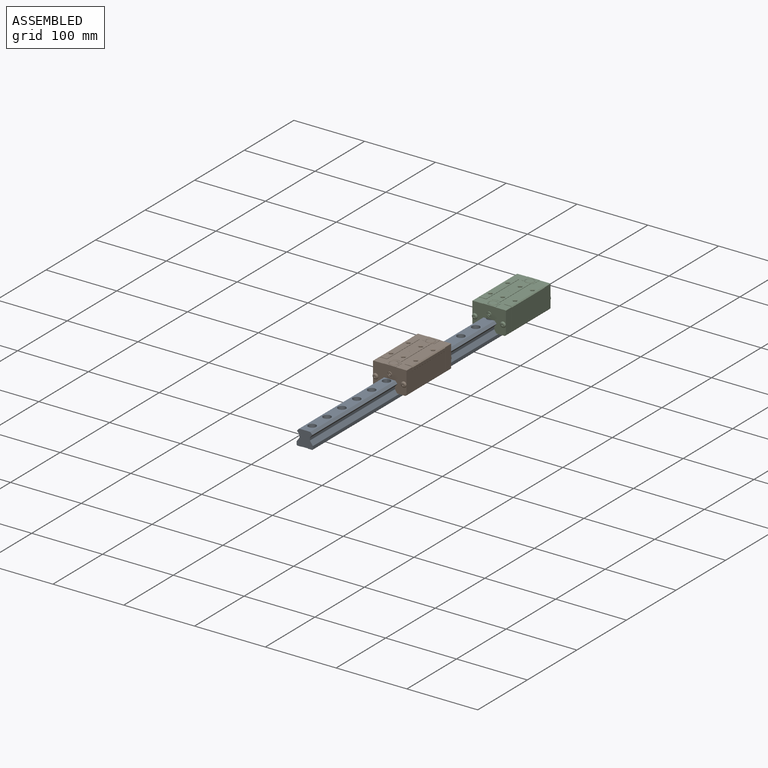
[diagram: assembled view]
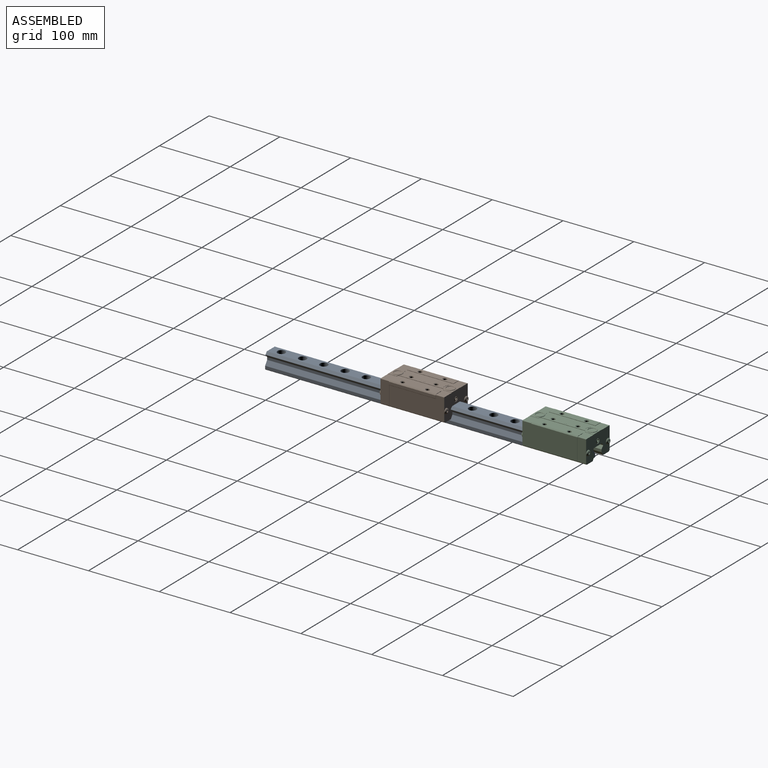
[diagram: assembled view, second angle]
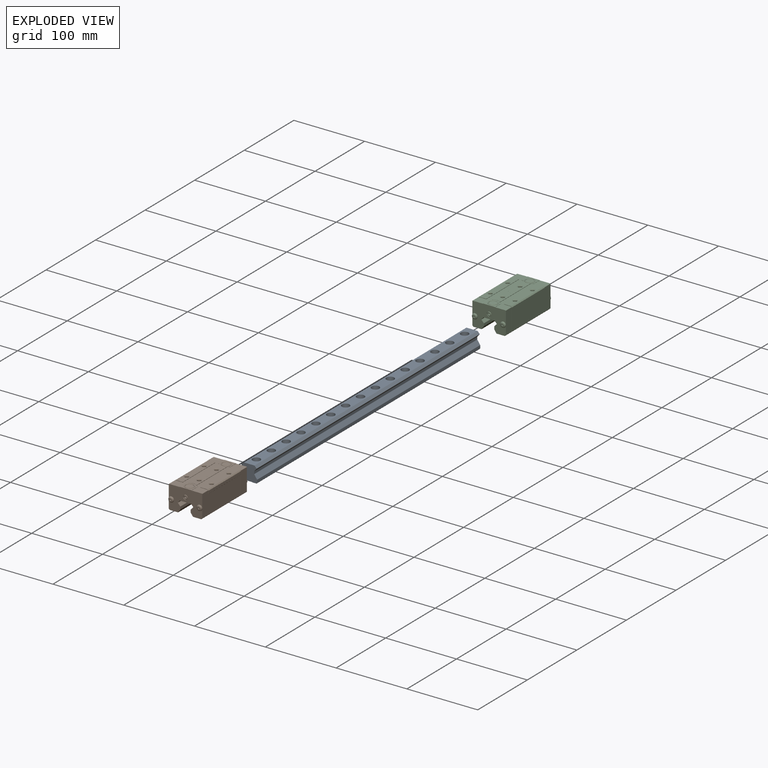
[diagram: exploded view]
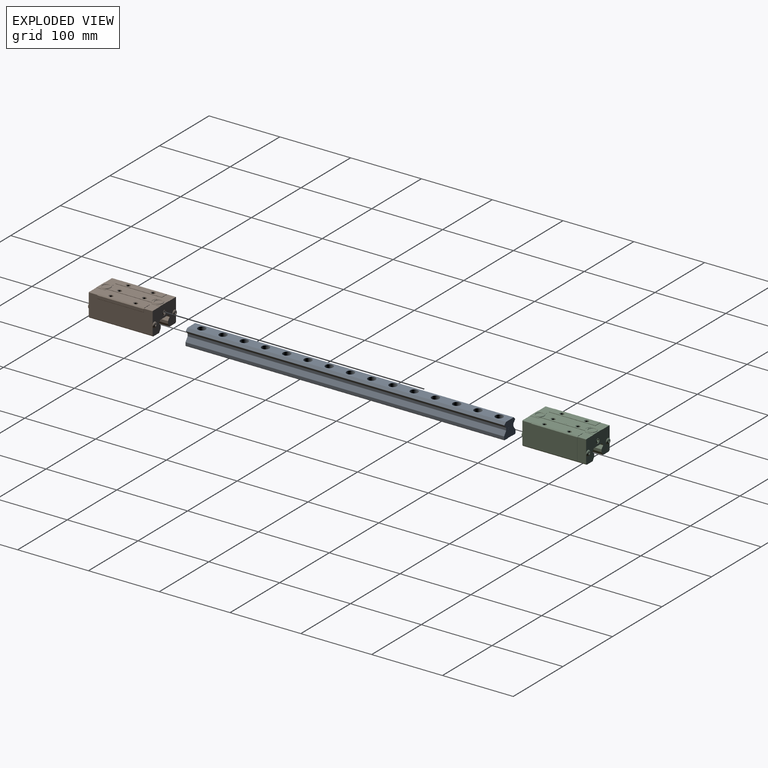
[diagram: exploded view, second angle]
ASSEMBLY  parts=3 mates=2
PART A: 85 faces, bbox 23x450x22.3 mm
  f0: plane 450x0.3mm, normal (-0.71,0,-0.71), area 190.9mm2, adj f43,f44,f70,f76
  f1: plane 450x0.3mm, normal (0.71,0,-0.71), area 190.9mm2, adj f43,f53,f70,f76
  f2: plane 450x0.8mm, normal (0.71,0,-0.71), area 509.1mm2, adj f44,f45,f70,f76
  f3: cylinder r=0.65mm len=450mm, axis (0,1,0), area 178.7mm2, adj f45,f46,f70,f76
  f4: cylinder r=0.65mm len=450mm, axis (0,1,0), area 178.7mm2, adj f46,f47,f70,f76
  f5: cylinder r=0.65mm len=450mm, axis (0,1,0), area 214.4mm2, adj f47,f48,f70,f76
  f6: cylinder r=0.65mm len=450mm, axis (0,1,0), area 214.4mm2, adj f49,f50,f70,f76
  f7: cylinder r=0.65mm len=450mm, axis (0,1,0), area 178.7mm2, adj f50,f51,f70,f76
  f8: cylinder r=0.65mm len=450mm, axis (0,1,0), area 178.7mm2, adj f51,f52,f70,f76
  f9: plane 450x0.8mm, normal (-0.71,0,-0.71), area 509.1mm2, adj f52,f53,f70,f76
  f10: cylinder r=0.4mm len=450mm, axis (0,1,0), area 263.9mm2, adj f49,f70,f71,f76
  f11: plane 450x3.13mm, normal (0.74,0,0.67), area 1895.2mm2, adj f12,f54,f70,f76
  f12: plane 450x15.78mm, normal (0,0,1), area 5677mm2, adj f11,f55,f56,f57,f58,f59,f60,f61
  f13: cylinder r=3.4mm len=11.5mm, axis (0,0,1), area 245.7mm2, adj f28,f43
  f14: cylinder r=3.4mm len=11.5mm, axis (0,0,1), area 245.7mm2, adj f29,f43
  f15: cylinder r=3.4mm len=11.5mm, axis (0,0,1), area 245.7mm2, adj f30,f43
  f16: cylinder r=3.4mm len=11.5mm, axis (0,0,1), area 245.7mm2, adj f31,f43
  f17: cylinder r=3.4mm len=11.5mm, axis (0,0,1), area 245.7mm2, adj f32,f43
  f18: cylinder r=3.4mm len=11.5mm, axis (0,0,1), area 245.7mm2, adj f33,f43
  f19: cylinder r=3.4mm len=11.5mm, axis (0,0,1), area 245.7mm2, adj f34,f43
  f20: cylinder r=3.4mm len=11.5mm, axis (0,0,1), area 245.7mm2, adj f35,f43
  f21: cylinder r=3.4mm len=11.5mm, axis (0,0,1), area 245.7mm2, adj f36,f43
  f22: cylinder r=3.4mm len=11.5mm, axis (0,0,1), area 245.7mm2, adj f37,f43
  f23: cylinder r=3.4mm len=11.5mm, axis (0,0,1), area 245.7mm2, adj f38,f43
  f24: cylinder r=3.4mm len=11.5mm, axis (0,0,1), area 245.7mm2, adj f39,f43
  f25: cylinder r=3.4mm len=11.5mm, axis (0,0,1), area 245.7mm2, adj f40,f43
  f26: cylinder r=3.4mm len=11.5mm, axis (0,0,1), area 245.7mm2, adj f41,f43
  f27: cylinder r=3.4mm len=11.5mm, axis (0,0,1), area 245.7mm2, adj f42,f43
  f28: plane 11x11mm, normal (0,0,1), area 58.7mm2, adj f13,f55
  f29: plane 11x11mm, normal (0,0,1), area 58.7mm2, adj f14,f56
  f30: plane 11x11mm, normal (0,0,1), area 58.7mm2, adj f15,f57
  f31: plane 11x11mm, normal (0,0,1), area 58.7mm2, adj f16,f58
  f32: plane 11x11mm, normal (0,0,1), area 58.7mm2, adj f17,f59
  f33: plane 11x11mm, normal (0,0,1), area 58.7mm2, adj f18,f60
  f34: plane 11x11mm, normal (0,0,1), area 58.7mm2, adj f19,f61
  f35: plane 11x11mm, normal (0,0,1), area 58.7mm2, adj f20,f62
  f36: plane 11x11mm, normal (0,0,1), area 58.7mm2, adj f21,f63
  f37: plane 11x11mm, normal (0,0,1), area 58.7mm2, adj f22,f64
  f38: plane 11x11mm, normal (0,0,1), area 58.7mm2, adj f23,f65
  f39: plane 11x11mm, normal (0,0,1), area 58.7mm2, adj f24,f66
  f40: plane 11x11mm, normal (0,0,1), area 58.7mm2, adj f25,f67
  f41: plane 11x11mm, normal (0,0,1), area 58.7mm2, adj f26,f68
  f42: plane 11x11mm, normal (0,0,1), area 58.7mm2, adj f27,f69
  f43: plane 450x8.4mm, normal (0,0,-1), area 3235.2mm2, adj f0,f1,f13,f14,f15,f16,f17,f18
  f44: plane 450x6.19mm, normal (0,0,-1), area 2785.5mm2, adj f0,f2,f70,f76
  f45: plane 450x4.14mm, normal (1,0,0), area 1862.4mm2, adj f2,f3,f70,f76
  f46: plane 450x5.66mm, normal (0.82,0,0.57), area 3110.7mm2, adj f3,f4,f70,f76
  f47: plane 450x3.22mm, normal (1,0,0), area 1449.4mm2, adj f4,f5,f70,f76
  f48: plane 450x3.61mm, normal (0.74,0,-0.67), area 2187.2mm2, adj f5,f54,f70,f76
  f49: plane 450x3.61mm, normal (-0.74,0,-0.67), area 2187.5mm2, adj f6,f10,f70,f76
  f50: plane 450x3.22mm, normal (-1,0,0), area 1449.4mm2, adj f6,f7,f70,f76
  f51: plane 450x5.66mm, normal (-0.82,0,0.57), area 3110.7mm2, adj f7,f8,f70,f76
  f52: plane 450x4.14mm, normal (-1,0,0), area 1862.4mm2, adj f8,f9,f70,f76
  f53: plane 450x6.19mm, normal (0,0,-1), area 2785.5mm2, adj f1,f9,f70,f76
  f54: cylinder r=0.4mm len=450mm, axis (0,1,0), area 263.9mm2, adj f11,f48,f70,f76
  f55: cylinder r=5.5mm len=11mm, axis (0,0,1), area 362.2mm2, adj f12,f28
  f56: cylinder r=5.5mm len=11mm, axis (0,0,1), area 362.2mm2, adj f12,f29
  f57: cylinder r=5.5mm len=11mm, axis (0,0,1), area 362.2mm2, adj f12,f30
  f58: cylinder r=5.5mm len=11mm, axis (0,0,1), area 362.2mm2, adj f12,f31
  f59: cylinder r=5.5mm len=11mm, axis (0,0,1), area 362.2mm2, adj f12,f32
  f60: cylinder r=5.5mm len=11mm, axis (0,0,1), area 362.2mm2, adj f12,f33
  f61: cylinder r=5.5mm len=11mm, axis (0,0,1), area 362.2mm2, adj f12,f34
  f62: cylinder r=5.5mm len=11mm, axis (0,0,1), area 362.2mm2, adj f12,f35
  f63: cylinder r=5.5mm len=11mm, axis (0,0,1), area 362.2mm2, adj f12,f36
  f64: cylinder r=5.5mm len=11mm, axis (0,0,1), area 362.2mm2, adj f12,f37
  f65: cylinder r=5.5mm len=11mm, axis (0,0,1), area 362.2mm2, adj f12,f38
  f66: cylinder r=5.5mm len=11mm, axis (0,0,1), area 362.2mm2, adj f12,f39
  f67: cylinder r=5.5mm len=11mm, axis (0,0,1), area 362.2mm2, adj f12,f40
  f68: cylinder r=5.5mm len=11mm, axis (0,0,1), area 362.2mm2, adj f12,f41
  f69: cylinder r=5.5mm len=11mm, axis (0,0,1), area 362.2mm2, adj f12,f42
  f70: plane 22.98x22.28mm, normal (0,1,0), area 419.3mm2, adj f0,f1,f2,f3,f4,f5,f6,f7
  f71: plane 450x3.13mm, normal (-0.74,0,0.67), area 1894.9mm2, adj f10,f12,f70,f76
  f72: plane 3.84x3.84mm, normal (-0.71,0,0.71), area 0.1mm2, adj f73,f75,f76,f84
  f73: plane 3.84x3.84mm, normal (0.71,0,0.71), area 0.1mm2, adj f72,f74,f76,f84
  f74: plane 3.84x3.84mm, normal (0.71,0,-0.71), area 0.1mm2, adj f73,f75,f76,f84
  f75: plane 3.84x3.84mm, normal (-0.71,0,-0.71), area 0.1mm2, adj f72,f74,f76,f84
  f76: plane 22.98x22.28mm, normal (0,-1,0), area 389.8mm2, adj f0,f1,f2,f3,f4,f5,f6,f7
  f77: plane 0.5x0.32mm, normal (0,-1,0), area 0.1mm2, adj f79
  f78: plane 0.5x0.33mm, normal (0,-1,0), area 0.1mm2, adj f83
  f79: plane 1.66x1.53mm, normal (0,-1,0), area 1.5mm2, adj f77,f84
  f80: plane 1.52x1.06mm, normal (0,-1,0), area 1mm2, adj f84
  f81: plane 1.67x1.52mm, normal (0,-1,0), area 1.8mm2, adj f84
  f82: plane 1.51x1.07mm, normal (0,-1,0), area 1mm2, adj f84
  f83: plane 1.65x1.52mm, normal (0,-1,0), area 1.5mm2, adj f78,f84
  f84: plane 7.69x7.69mm, normal (0,-1,0), area 22.6mm2, adj f72,f73,f74,f75,f79,f80,f81,f82
PART B: 233 faces, bbox 47.9x94.2x34.1 mm
  f0: cylinder r=7mm len=1.54mm, axis (0,0,-1), area 0.5mm2, adj f2,f66,f67,f102
  f1: plane 0.6x0.6mm, normal (0,-1,0), area 0.1mm2, adj f50,f67,f68,f117
  f2: plane 2.08x0.3mm, normal (0,-1,0), area 0.6mm2, adj f0,f48,f66,f67
  f3: plane 2.08x0.3mm, normal (0,-1,0), area 0.6mm2, adj f47,f64,f65,f66
  f4: plane 26.65x0.15mm, normal (0,-1,0), area 4mm2, adj f62,f63,f97,f108
  f5: plane 2.39x1.5mm, normal (0.87,0,-0.5), area 4.1mm2, adj f6,f7,f9,f12
  f6: plane 2.39x1.5mm, normal (0.87,0,0.5), area 4.1mm2, adj f5,f8,f9,f12
  f7: plane 2.39x1.73mm, normal (0,0,-1), area 4.1mm2, adj f5,f9,f10,f12
  f8: plane 2.39x1.73mm, normal (0,0,1), area 4.1mm2, adj f6,f9,f11,f12
  f9: plane 3.46x3mm, normal (0,1,0), area 7.8mm2, adj f5,f6,f7,f8,f10,f11
  f10: plane 2.39x1.5mm, normal (-0.87,0,-0.5), area 4.1mm2, adj f7,f9,f11,f12
  f11: plane 2.39x1.5mm, normal (-0.87,0,0.5), area 4.1mm2, adj f8,f9,f10,f12
  f12: plane 4.77x4.77mm, normal (0,1,0), area 10.1mm2, adj f5,f6,f7,f8,f10,f11,f15
  f13: plane 2.89x2.5mm, normal (0,1,0), area 5.4mm2, adj f16,f17,f18,f19,f20,f21
  f14: plane 2.89x2.5mm, normal (0,1,0), area 5.4mm2, adj f22,f23,f24,f25,f26,f27
  f15: cone r=3mm half-angle=45deg, axis (0,-1,0), area 14.7mm2, adj f12,f28
  f16: plane 1.44x1.3mm, normal (-1,0,0), area 1.9mm2, adj f13,f17,f21,f29
  f17: plane 1.3x1.25mm, normal (-0.5,0,-0.87), area 1.9mm2, adj f13,f16,f18,f29
  f18: plane 1.3x1.25mm, normal (0.5,0,-0.87), area 1.9mm2, adj f13,f17,f19,f29
  f19: plane 1.44x1.3mm, normal (1,0,0), area 1.9mm2, adj f13,f18,f20,f29
  f20: plane 1.3x1.25mm, normal (0.5,0,0.87), area 1.9mm2, adj f13,f19,f21,f29
  f21: plane 1.3x1.25mm, normal (-0.5,0,0.87), area 1.9mm2, adj f13,f16,f20,f29
  f22: plane 1.44x1.3mm, normal (-1,0,0), area 1.9mm2, adj f14,f23,f27,f30
  f23: plane 1.3x1.25mm, normal (-0.5,0,-0.87), area 1.9mm2, adj f14,f22,f24,f30
  f24: plane 1.3x1.25mm, normal (0.5,0,-0.87), area 1.9mm2, adj f14,f23,f25,f30
  f25: plane 1.44x1.3mm, normal (1,0,0), area 1.9mm2, adj f14,f24,f26,f30
  f26: plane 1.3x1.25mm, normal (0.5,0,0.87), area 1.9mm2, adj f14,f25,f27,f30
  f27: plane 1.3x1.25mm, normal (-0.5,0,0.87), area 1.9mm2, adj f14,f22,f26,f30
  f28: cylinder r=3mm len=6mm, axis (0,-1,0), area 3.5mm2, adj f15,f31
  f29: plane 3.69x3.69mm, normal (0,1,0), area 5mm2, adj f16,f17,f18,f19,f20,f21,f35
  f30: plane 3.69x3.69mm, normal (0,1,0), area 5mm2, adj f22,f23,f24,f25,f26,f27,f36
  f31: plane 6.6x6.6mm, normal (0,1,0), area 5.9mm2, adj f28,f37
  f32: cylinder r=3.8mm len=2.11mm, axis (0,-1,0), area 0.5mm2, adj f35,f44,f63
  f33: plane 10x10mm, normal (0,0,1), area 78.5mm2, adj f46
  f34: cylinder r=3.8mm len=2.11mm, axis (0,-1,0), area 0.5mm2, adj f36,f49,f68
  f35: revolved ~7.6x7.6mm, area 60.2mm2, adj f29,f32,f51
  f36: revolved ~7.6x7.6mm, area 60.2mm2, adj f30,f34,f51
  f37: cylinder r=3.3mm len=6.6mm, axis (0,1,0), area 16.6mm2, adj f31,f51
  f38: cylinder r=0.65mm len=90.14mm, axis (0,1,0), area 35.8mm2, adj f51,f52,f53,f133
  f39: cylinder r=0.65mm len=90.14mm, axis (0,1,0), area 42.9mm2, adj f51,f53,f54,f133
  f40: cylinder r=0.4mm len=77.87mm, axis (0,1,0), area 45.7mm2, adj f51,f54,f55,f141
  f41: cylinder r=0.4mm len=77.87mm, axis (0,1,0), area 45.7mm2, adj f51,f57,f58,f142
  f42: cylinder r=0.65mm len=90.14mm, axis (0,1,0), area 42.9mm2, adj f51,f58,f59,f133
  f43: cylinder r=0.65mm len=90.14mm, axis (0,1,0), area 35.8mm2, adj f51,f59,f60,f133
  f44: plane 2.11x0.15mm, normal (0,-1,0), area 0.2mm2, adj f32,f63
  f45: cylinder r=0.5mm len=12.27mm, axis (0,1,0), area 9.6mm2, adj f51,f63,f64,f71,f181,f183
  f46: revolved ~13x13mm, area 85.1mm2, adj f33,f66
  f47: plane 12.27x0.3mm, normal (1,0,0), area 3.7mm2, adj f3,f51,f64,f66
  f48: plane 12.27x0.3mm, normal (-1,0,0), area 3.7mm2, adj f2,f51,f66,f67
  f49: plane 2.11x0.15mm, normal (0,-1,0), area 0.2mm2, adj f34,f68
  f50: cylinder r=0.5mm len=12.27mm, axis (0,1,0), area 9.6mm2, adj f1,f51,f67,f68
  f51: plane 47.3x33.3mm, normal (0,1,0), area 1164.9mm2, adj f35,f36,f37,f38,f39,f40,f41,f42
  f52: plane 90.14x4.47mm, normal (0.82,0,-0.57), area 492.3mm2, adj f38,f51,f70,f133
  f53: plane 90.14x3.22mm, normal (1,0,0), area 290.3mm2, adj f38,f39,f51,f133
  f54: plane 90.14x3.61mm, normal (0.74,0,0.67), area 438.2mm2, adj f39,f40,f51,f133,f141
  f55: plane 77.87x3.13mm, normal (0.74,0,-0.67), area 327.9mm2, adj f40,f51,f56,f131
  f56: plane 90.14x15.78mm, normal (0,0,-1), area 1422.7mm2, adj f51,f55,f57,f131,f132,f133
  f57: plane 77.87x3.13mm, normal (-0.74,0,-0.67), area 328mm2, adj f41,f51,f56,f132
  f58: plane 90.14x3.61mm, normal (-0.74,0,0.67), area 438.1mm2, adj f41,f42,f51,f133,f142
  f59: plane 90.14x3.22mm, normal (-1,0,0), area 290.3mm2, adj f42,f43,f51,f133
  f60: plane 90.14x4.47mm, normal (-0.82,0,-0.57), area 492.3mm2, adj f43,f51,f61,f133
  f61: plane 90.14x11.71mm, normal (0,0,-1), area 1055.5mm2, adj f51,f60,f62,f107,f125,f133
  f62: plane 12.27x1.4mm, normal (0.71,0,-0.71), area 24.3mm2, adj f4,f51,f61,f63,f184
  f63: plane 31.1x12.27mm, normal (1,0,0), area 381.1mm2, adj f4,f32,f44,f45,f51,f62,f183
  f64: plane 90.14x17.66mm, normal (0,0,1), area 817.8mm2, adj f3,f45,f47,f51,f65,f75,f100,f101
  f65: cylinder r=7mm len=1.54mm, axis (0,0,-1), area 0.5mm2, adj f3,f64,f66,f100
  f66: plane 17x16.47mm, normal (0,0,1), area 114.7mm2, adj f0,f2,f3,f46,f47,f48,f51,f65
  f67: plane 90.14x17.66mm, normal (0,0,1), area 817.8mm2, adj f0,f1,f2,f48,f50,f51,f102,f105
  f68: plane 31.1x12.27mm, normal (-1,0,0), area 381.1mm2, adj f1,f34,f49,f50,f51,f69,f182
  f69: plane 12.27x1.4mm, normal (-0.71,0,-0.71), area 24.3mm2, adj f51,f68,f70,f182
  f70: plane 90.14x11.71mm, normal (0,0,-1), area 1055.5mm2, adj f51,f52,f69,f115,f130,f133
  f71: plane 0.37x0.37mm, normal (0,-1,0), area 0mm2, adj f45,f110
  f72: plane 1.25x1.25mm, normal (0,-1,0), area 0mm2, adj f107,f108,f125
  f73: plane 4.71x0.36mm, normal (0,-1,0), area 1.5mm2, adj f97,f109,f110,f126,f134
  f74: plane 32.4x1.55mm, normal (0,-1,0), area 4.6mm2, adj f115,f117,f118,f129,f130
  f75: plane 10.76x0.51mm, normal (0,-1,0), area 5.3mm2, adj f64,f101,f110,f111,f134
  f76: plane 62.51x10.98mm, normal (0,0,1), area 534.3mm2, adj f93,f94,f100,f102,f106,f112,f119,f120
  f77: cone r=2.5mm half-angle=60deg, axis (0,0,1), area 22.7mm2, adj f81
  f78: cone r=2.5mm half-angle=60deg, axis (0,0,1), area 22.7mm2, adj f82
  f79: cone r=2.5mm half-angle=60deg, axis (0,0,1), area 22.7mm2, adj f85
  f80: cone r=2.5mm half-angle=60deg, axis (0,0,1), area 22.7mm2, adj f86
  f81: plane 5x5mm, normal (0,0,-1), area 0.1mm2, adj f77,f87
  f82: plane 5x5mm, normal (0,0,-1), area 0.1mm2, adj f78,f88
  f83: cone r=2.5mm half-angle=60deg, axis (0,0,1), area 22.7mm2, adj f89
  f84: cone r=2.5mm half-angle=60deg, axis (0,0,1), area 22.7mm2, adj f90
  f85: plane 5x5mm, normal (0,0,-1), area 0.1mm2, adj f79,f91
  f86: plane 5x5mm, normal (0,0,-1), area 0.1mm2, adj f80,f92
  f87: cylinder r=2.49mm len=8.67mm, axis (0,0,1), area 135.9mm2, adj f81,f93
  f88: cylinder r=2.49mm len=8.67mm, axis (0,0,1), area 135.9mm2, adj f82,f94
  f89: plane 5x5mm, normal (0,0,-1), area 0.1mm2, adj f83,f95
  f90: plane 5x5mm, normal (0,0,-1), area 0.1mm2, adj f84,f96
  f91: cylinder r=2.49mm len=8.67mm, axis (0,0,1), area 135.9mm2, adj f85,f98
  f92: cylinder r=2.49mm len=8.67mm, axis (0,0,1), area 135.9mm2, adj f86,f99
  f93: cone r=2.49mm half-angle=45deg, axis (0,0,1), area 21.5mm2, adj f76,f87
  f94: cone r=2.49mm half-angle=45deg, axis (0,0,1), area 21.5mm2, adj f76,f88
  f95: cylinder r=2.49mm len=8.67mm, axis (0,0,1), area 135.9mm2, adj f89,f103
  f96: cylinder r=2.49mm len=8.67mm, axis (0,0,1), area 135.9mm2, adj f90,f104
  f97: plane 65.6x0.5mm, normal (0.71,0,-0.71), area 46.4mm2, adj f4,f73,f108,f109,f179,f183
  f98: cone r=2.49mm half-angle=45deg, axis (0,0,1), area 21.5mm2, adj f91,f111
  f99: cone r=2.49mm half-angle=45deg, axis (0,0,1), area 21.5mm2, adj f92,f111
  f100: plane 62.51x0.5mm, normal (1,0,0), area 31.3mm2, adj f64,f65,f76,f106,f112,f180
  f101: plane 65.6x0.5mm, normal (-1,0,0), area 32.8mm2, adj f64,f75,f111,f181
  f102: plane 62.51x0.5mm, normal (-1,0,0), area 31.3mm2, adj f0,f67,f76,f106,f112,f128
  f103: cone r=2.49mm half-angle=45deg, axis (0,0,1), area 21.5mm2, adj f95,f113
  f104: cone r=2.49mm half-angle=45deg, axis (0,0,1), area 21.5mm2, adj f96,f113
  f105: plane 65.6x0.5mm, normal (1,0,0), area 32.8mm2, adj f67,f113,f114,f116
  f106: cylinder r=7mm len=10.98mm, axis (0,0,1), area 2.5mm2, adj f66,f76,f100,f102
  f107: plane 65.6x1.25mm, normal (0.7,0,-0.71), area 115.3mm2, adj f61,f72,f108,f184
  f108: plane 65.6x26.51mm, normal (1,0,0), area 1739.3mm2, adj f4,f72,f97,f107,f179,f184
  f109: plane 65.6x4mm, normal (1,0,0), area 262.4mm2, adj f73,f97,f110,f183
  f110: plane 65.6x1.25mm, normal (0.71,0,0.71), area 116mm2, adj f71,f73,f75,f109,f111,f178,f181,f183
  f111: plane 65.6x10.25mm, normal (0,0,1), area 602.9mm2, adj f75,f98,f99,f101,f110,f181
  f112: cylinder r=7mm len=10.98mm, axis (0,0,1), area 2.5mm2, adj f76,f100,f102,f127
  f113: plane 65.6x10.05mm, normal (0,0,1), area 589.8mm2, adj f103,f104,f105,f114,f116,f117
  f114: plane 10.55x0.5mm, normal (0,1,0), area 5.2mm2, adj f67,f105,f113,f117
  f115: plane 65.6x1.55mm, normal (-0.7,0,-0.71), area 142.9mm2, adj f70,f74,f118,f182
  f116: plane 10.55x0.5mm, normal (0,-1,0), area 5.2mm2, adj f67,f105,f113,f117
  f117: plane 65.6x1.25mm, normal (-0.71,0,0.71), area 116mm2, adj f1,f74,f113,f114,f116,f118,f124,f182
  f118: plane 65.6x30.72mm, normal (-1,0,0), area 2015.2mm2, adj f74,f115,f117,f182
  f119: plane 4.58x4.58mm, normal (0.71,0.71,0), area 0.2mm2, adj f76,f120,f122,f123
  f120: plane 4.58x4.58mm, normal (-0.71,0.71,0), area 0.2mm2, adj f76,f119,f121,f123
  f121: plane 4.58x4.58mm, normal (-0.71,-0.71,0), area 0.2mm2, adj f76,f120,f122,f123
  f122: plane 4.58x4.58mm, normal (0.71,-0.71,0), area 0.2mm2, adj f76,f119,f121,f123
  f123: plane 9.16x9.16mm, normal (0,0,1), area 42mm2, adj f119,f120,f121,f122
  f124: plane 0.6x0.6mm, normal (0,1,0), area 0.1mm2, adj f67,f117,f129,f139
  f125: plane 12.27x1.4mm, normal (0.71,0,-0.71), area 24.3mm2, adj f61,f72,f126,f133,f179
  f126: plane 31.1x12.27mm, normal (1,0,0), area 381.1mm2, adj f73,f125,f133,f134,f135,f146,f179
  f127: plane 17x16.47mm, normal (0,0,1), area 114.7mm2, adj f112,f128,f133,f136,f137,f138,f176,f177
  f128: cylinder r=7mm len=1.54mm, axis (0,0,-1), area 0.5mm2, adj f67,f102,f127,f176
  f129: plane 31.1x12.27mm, normal (-1,0,0), area 381.1mm2, adj f74,f124,f130,f133,f139,f140,f148
  f130: plane 12.27x1.4mm, normal (-0.71,0,-0.71), area 24.3mm2, adj f70,f74,f129,f133
  f131: plane 12.27x3.13mm, normal (0.74,0,-0.67), area 51.7mm2, adj f55,f56,f133,f141
  f132: plane 12.27x3.13mm, normal (-0.74,0,-0.67), area 51.7mm2, adj f56,f57,f133,f142
  f133: plane 47.3x33.3mm, normal (0,-1,0), area 1164.9mm2, adj f38,f39,f42,f43,f52,f53,f54,f56
  f134: cylinder r=0.5mm len=12.27mm, axis (0,-1,0), area 9.6mm2, adj f64,f73,f75,f126,f133,f178
  f135: plane 2.11x0.15mm, normal (0,1,0), area 0.2mm2, adj f126,f146
  f136: plane 12.27x0.3mm, normal (1,0,0), area 3.7mm2, adj f64,f127,f133,f177
  f137: plane 12.27x0.3mm, normal (-1,0,0), area 3.7mm2, adj f67,f127,f133,f176
  f138: revolved ~13x13mm, area 85.1mm2, adj f127,f147
  f139: cylinder r=0.5mm len=12.27mm, axis (0,-1,0), area 9.6mm2, adj f67,f124,f129,f133
  f140: plane 2.11x0.15mm, normal (0,1,0), area 0.2mm2, adj f129,f148
  f141: cylinder r=0.4mm len=12.27mm, axis (0,-1,0), area 7.2mm2, adj f40,f54,f131,f133
  f142: cylinder r=0.4mm len=12.27mm, axis (0,-1,0), area 7.2mm2, adj f41,f58,f132,f133
  f143: cylinder r=3.3mm len=6.6mm, axis (0,-1,0), area 16.6mm2, adj f133,f149
  f144: revolved ~7.6x7.6mm, area 60.2mm2, adj f133,f146,f150
  f145: revolved ~7.6x7.6mm, area 60.2mm2, adj f133,f148,f151
  f146: cylinder r=3.8mm len=2.11mm, axis (0,1,0), area 0.5mm2, adj f126,f135,f144
  f147: plane 10x10mm, normal (0,0,1), area 78.5mm2, adj f138
  f148: cylinder r=3.8mm len=2.11mm, axis (0,1,0), area 0.5mm2, adj f129,f140,f145
  f149: plane 6.6x6.6mm, normal (0,-1,0), area 5.9mm2, adj f143,f152
  f150: plane 3.69x3.69mm, normal (0,-1,0), area 5mm2, adj f144,f153,f154,f155,f156,f157,f158
  f151: plane 3.69x3.69mm, normal (0,-1,0), area 5mm2, adj f145,f159,f160,f161,f162,f163,f164
  f152: cylinder r=3mm len=6mm, axis (0,1,0), area 3.5mm2, adj f149,f165
  f153: plane 1.3x1.25mm, normal (0.5,0,0.87), area 1.9mm2, adj f150,f154,f158,f166
  f154: plane 1.3x1.25mm, normal (-0.5,0,0.87), area 1.9mm2, adj f150,f153,f155,f166
  f155: plane 1.44x1.3mm, normal (-1,0,0), area 1.9mm2, adj f150,f154,f156,f166
  f156: plane 1.3x1.25mm, normal (-0.5,0,-0.87), area 1.9mm2, adj f150,f155,f157,f166
  f157: plane 1.3x1.25mm, normal (0.5,0,-0.87), area 1.9mm2, adj f150,f156,f158,f166
  f158: plane 1.44x1.3mm, normal (1,0,0), area 1.9mm2, adj f150,f153,f157,f166
  f159: plane 1.3x1.25mm, normal (0.5,0,0.87), area 1.9mm2, adj f151,f160,f164,f167
  f160: plane 1.3x1.25mm, normal (-0.5,0,0.87), area 1.9mm2, adj f151,f159,f161,f167
  f161: plane 1.44x1.3mm, normal (-1,0,0), area 1.9mm2, adj f151,f160,f162,f167
  f162: plane 1.3x1.25mm, normal (-0.5,0,-0.87), area 1.9mm2, adj f151,f161,f163,f167
  f163: plane 1.3x1.25mm, normal (0.5,0,-0.87), area 1.9mm2, adj f151,f162,f164,f167
  f164: plane 1.44x1.3mm, normal (1,0,0), area 1.9mm2, adj f151,f159,f163,f167
  f165: cone r=3mm half-angle=45deg, axis (0,1,0), area 14.7mm2, adj f152,f168
  f166: plane 2.89x2.5mm, normal (0,-1,0), area 5.4mm2, adj f153,f154,f155,f156,f157,f158
  f167: plane 2.89x2.5mm, normal (0,-1,0), area 5.4mm2, adj f159,f160,f161,f162,f163,f164
  f168: plane 4.77x4.77mm, normal (0,-1,0), area 10.1mm2, adj f165,f169,f170,f172,f173,f174,f175
  f169: plane 2.39x1.5mm, normal (0.87,0,0.5), area 4.1mm2, adj f168,f170,f171,f172
  f170: plane 2.39x1.5mm, normal (0.87,0,-0.5), area 4.1mm2, adj f168,f169,f171,f173
  f171: plane 3.46x3mm, normal (0,-1,0), area 7.8mm2, adj f169,f170,f172,f173,f174,f175
  f172: plane 2.39x1.73mm, normal (0,0,1), area 4.1mm2, adj f168,f169,f171,f174
  f173: plane 2.39x1.73mm, normal (0,0,-1), area 4.1mm2, adj f168,f170,f171,f175
  f174: plane 2.39x1.5mm, normal (-0.87,0,0.5), area 4.1mm2, adj f168,f171,f172,f175
  f175: plane 2.39x1.5mm, normal (-0.87,0,-0.5), area 4.1mm2, adj f168,f171,f173,f174
  f176: plane 2.08x0.3mm, normal (0,1,0), area 0.6mm2, adj f67,f127,f128,f137
  f177: plane 2.08x0.3mm, normal (0,1,0), area 0.6mm2, adj f64,f127,f136,f180
  f178: plane 0.37x0.37mm, normal (0,1,0), area 0mm2, adj f110,f134
  f179: plane 26.65x0.15mm, normal (0,1,0), area 4mm2, adj f97,f108,f125,f126
  f180: cylinder r=7mm len=1.54mm, axis (0,0,-1), area 0.5mm2, adj f64,f100,f127,f177
  f181: plane 10.76x0.51mm, normal (0,1,0), area 5.3mm2, adj f45,f64,f101,f110,f111
  f182: plane 32.4x1.55mm, normal (0,1,0), area 4.6mm2, adj f68,f69,f115,f117,f118
  f183: plane 4.71x0.36mm, normal (0,1,0), area 1.5mm2, adj f45,f63,f97,f109,f110
  f184: plane 1.25x1.25mm, normal (0,1,0), area 0mm2, adj f62,f107,f108
  f185: plane 4.5x4.5mm, normal (0,-1,0), area 0.7mm2, adj f186,f187
  f186: cylinder r=2.25mm len=12.05mm, axis (0,1,0), area 170.4mm2, adj f185,f190
  f187: revolved ~4.4x4.4mm, area 4.1mm2, adj f185,f188
  f188: cylinder r=2mm len=11.64mm, axis (0,-1,0), area 146.3mm2, adj f187,f189
  f189: cone r=2mm half-angle=45deg, axis (0,1,0), area 3.5mm2, adj f188,f190
  f190: plane 4.5x4.5mm, normal (0,1,0), area 5.8mm2, adj f186,f189
  f191: plane 4.5x4.5mm, normal (0,-1,0), area 0.7mm2, adj f192,f193
  f192: cylinder r=2.25mm len=12.05mm, axis (0,1,0), area 170.4mm2, adj f191,f196
  f193: revolved ~4.4x4.4mm, area 4.1mm2, adj f191,f194
  f194: cylinder r=2mm len=11.64mm, axis (0,-1,0), area 146.3mm2, adj f193,f195
  f195: cone r=2mm half-angle=45deg, axis (0,1,0), area 3.5mm2, adj f194,f196
  f196: plane 4.5x4.5mm, normal (0,1,0), area 5.8mm2, adj f192,f195
  f197: plane 12.83x2.3mm, normal (0,-1,0), area 29.5mm2, adj f198,f199,f200
  f198: plane 12.83x4.2mm, normal (0,0,-1), area 38.8mm2, adj f197,f200
  f199: plane 12.83x4.2mm, normal (0,0,1), area 38.8mm2, adj f197,f200
  f200: cylinder r=7mm len=12.83mm, axis (0,0,1), area 37.3mm2, adj f197,f198,f199
  f201: plane 10.13x10.13mm, normal (0,0,-1), area 80.5mm2, adj f202
  f202: revolved ~12.87x12.87mm, area 62.8mm2, adj f201,f203
  f203: plane 13x13mm, normal (0,0,-1), area 2.5mm2, adj f202,f204
  f204: cylinder r=6.5mm len=13mm, axis (0,0,1), area 61.3mm2, adj f203,f205
  f205: plane 13x13mm, normal (0,0,1), area 132.7mm2, adj f204
  f206: plane 6x6mm, normal (0,1,0), area 15.7mm2, adj f207,f208
  f207: cylinder r=3mm len=6mm, axis (0,-1,0), area 18.8mm2, adj f206,f208
  f208: cone r=3mm half-angle=45deg, axis (0,1,0), area 22.2mm2, adj f206,f207
  f209: plane 4.5x4.5mm, normal (0,-1,0), area 5.8mm2, adj f211,f214
  f210: plane 4.5x4.5mm, normal (0,1,0), area 0.7mm2, adj f211,f212
  f211: cylinder r=2.25mm len=12.05mm, axis (0,-1,0), area 170.4mm2, adj f209,f210
  f212: revolved ~4.4x4.4mm, area 4.1mm2, adj f210,f213
  f213: cylinder r=2mm len=11.64mm, axis (0,1,0), area 146.3mm2, adj f212,f214
  f214: cone r=2mm half-angle=45deg, axis (0,-1,0), area 3.5mm2, adj f209,f213
  f215: plane 4.5x4.5mm, normal (0,-1,0), area 5.8mm2, adj f217,f220
  f216: plane 4.5x4.5mm, normal (0,1,0), area 0.7mm2, adj f217,f218
  f217: cylinder r=2.25mm len=12.05mm, axis (0,-1,0), area 170.4mm2, adj f215,f216
  f218: revolved ~4.4x4.4mm, area 4.1mm2, adj f216,f219
  f219: cylinder r=2mm len=11.64mm, axis (0,1,0), area 146.3mm2, adj f218,f220
  f220: cone r=2mm half-angle=45deg, axis (0,-1,0), area 3.5mm2, adj f215,f219
  f221: plane 12.83x2.3mm, normal (0,1,0), area 29.5mm2, adj f222,f223,f224
  f222: plane 12.83x4.2mm, normal (0,0,-1), area 38.8mm2, adj f221,f224
  f223: plane 12.83x4.2mm, normal (0,0,1), area 38.8mm2, adj f221,f224
  f224: cylinder r=7mm len=12.83mm, axis (0,0,1), area 37.3mm2, adj f221,f222,f223
  f225: plane 10.13x10.13mm, normal (0,0,-1), area 80.5mm2, adj f226
  f226: revolved ~12.87x12.87mm, area 62.8mm2, adj f225,f227
  f227: plane 13x13mm, normal (0,0,-1), area 2.5mm2, adj f226,f228
  f228: cylinder r=6.5mm len=13mm, axis (0,0,1), area 61.3mm2, adj f227,f229
  f229: plane 13x13mm, normal (0,0,1), area 132.7mm2, adj f228
  f230: plane 6x6mm, normal (0,-1,0), area 15.7mm2, adj f231,f232
  f231: cylinder r=3mm len=6mm, axis (0,1,0), area 18.8mm2, adj f230,f232
  f232: cone r=3mm half-angle=45deg, axis (0,-1,0), area 22.2mm2, adj f230,f231
PART C: same geometry as B
PLACE A rot(axis=(0,0,1),180deg) t=(33.13,960.63,223.34)mm fixed
PLACE B t=(33.13,278.13,223.34)mm
PLACE C rot(axis=(0,0,1),180deg) t=(33.13,1076.63,223.34)mm
MATE slider A.f76 <-> C.f133  axis (0,1,0) through (25.23,810.63,245.62)mm
MATE slider A.f70 <-> B.f51  axis (0,-1,0) through (41.02,360.63,245.62)mm
